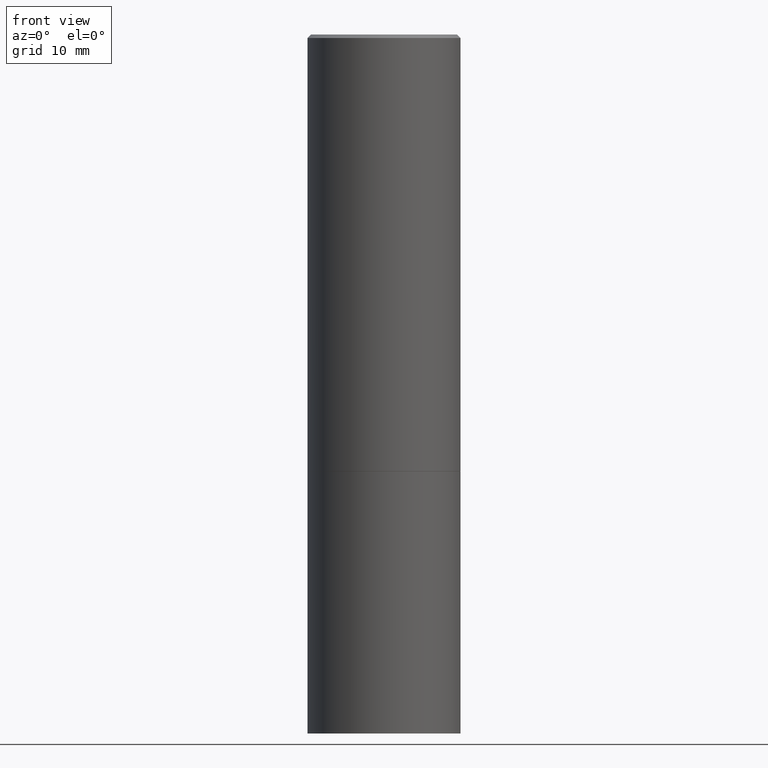
[diagram: clean part render]
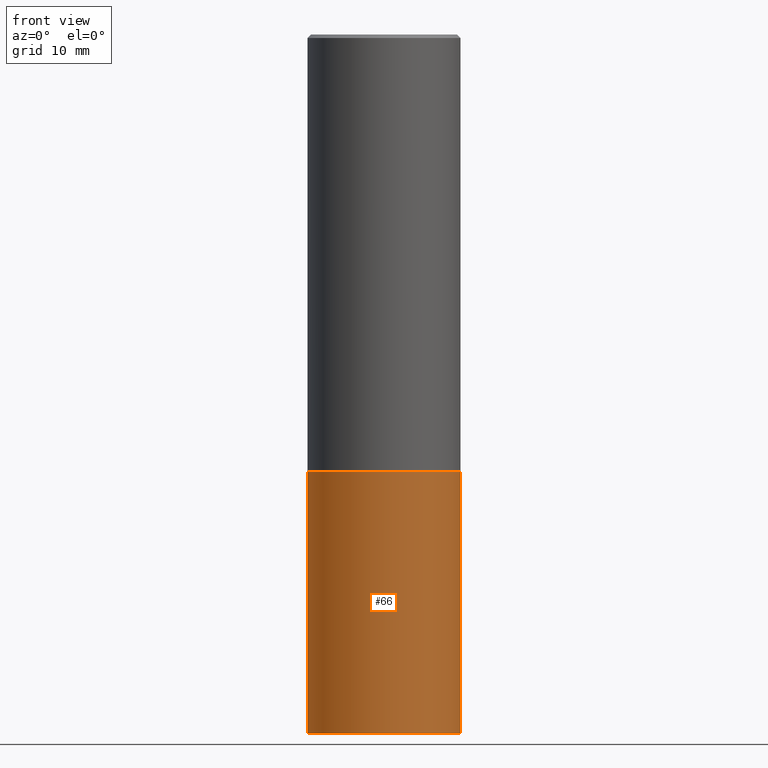
[diagram: same view with one face highlighted and labeled with its STEP entity id]
A machine part, front view. The second image highlights one B-rep face of the part: STEP entity #66.
In plain terms, the highlighted cylindrical surface (partial cylindrical patch) has radius 11.1125 mm, axis along (-0, 0, 1).
Its self-contained STEP definition (entity closure, byte-faithful):
#1 = DIRECTION ( 'NONE',  ( 1.000000000000000000, -6.982962677686267499E-15, 0.000000000000000000 ) ) ;
#13 = EDGE_CURVE ( 'NONE', #311, #138, #90, .T. ) ;
#30 = EDGE_LOOP ( 'NONE', ( #256, #58, #230, #142 ) ) ;
#42 = AXIS2_PLACEMENT_3D ( 'NONE', #64, #137, #1 ) ;
#51 = CARTESIAN_POINT ( 'NONE',  ( 6.113672015462842613E-29, -8.728703347107864943E-15, -2.500000000000000000 ) ) ;
#58 = ORIENTED_EDGE ( 'NONE', *, *, #13, .T. ) ;
#64 = CARTESIAN_POINT ( 'NONE',  ( 9.781875224740546387E-29, -1.396592535537258233E-14, -4.000000000000000000 ) ) ;
#66 = ADVANCED_FACE ( 'NONE', ( #95 ), #214, .T. ) ;
#70 = CARTESIAN_POINT ( 'NONE',  ( 0.4375000000000000000, -3.055046171487741686E-15, 2.133327339410721769E-29 ) ) ;
#73 = CARTESIAN_POINT ( 'NONE',  ( 0.4375000000000000000, -1.702097152686032402E-14, -4.000000000000000000 ) ) ;
#87 = EDGE_CURVE ( 'NONE', #138, #146, #242, .T. ) ;
#90 = CIRCLE ( 'NONE', #42, 0.4375000000000000000 ) ;
#95 = FACE_OUTER_BOUND ( 'NONE', #30, .T. ) ;
#97 = DIRECTION ( 'NONE',  ( -2.445468806185136877E-29, 3.491481338843145188E-15, 1.000000000000000000 ) ) ;
#111 = CIRCLE ( 'NONE', #318, 0.4375000000000000000 ) ;
#121 = VERTEX_POINT ( 'NONE', #212 ) ;
#122 = EDGE_CURVE ( 'NONE', #311, #121, #181, .T. ) ;
#137 = DIRECTION ( 'NONE',  ( -2.445468806185136597E-29, 3.491481338843145583E-15, 1.000000000000000000 ) ) ;
#138 = VERTEX_POINT ( 'NONE', #73 ) ;
#142 = ORIENTED_EDGE ( 'NONE', *, *, #176, .F. ) ;
#146 = VERTEX_POINT ( 'NONE', #186 ) ;
#151 = CARTESIAN_POINT ( 'NONE',  ( -0.4375000000000000000, 3.108624468950438313E-15, -2.152034101986521245E-29 ) ) ;
#161 = CARTESIAN_POINT ( 'NONE',  ( -0.4375000000000000000, -8.238689882289784535E-15, -4.000000000000000000 ) ) ;
#162 = DIRECTION ( 'NONE',  ( -2.445468806185136597E-29, 3.491481338843145583E-15, 1.000000000000000000 ) ) ;
#176 = EDGE_CURVE ( 'NONE', #121, #146, #111, .T. ) ;
#181 = LINE ( 'NONE', #151, #217 ) ;
#186 = CARTESIAN_POINT ( 'NONE',  ( 0.4375000000000000000, -1.178374951859560505E-14, -2.500000000000000000 ) ) ;
#210 = DIRECTION ( 'NONE',  ( -2.445468806185136597E-29, 3.491481338843145583E-15, 1.000000000000000000 ) ) ;
#212 = CARTESIAN_POINT ( 'NONE',  ( -0.4375000000000000000, -8.238689882289784535E-15, -2.500000000000000000 ) ) ;
#214 = CYLINDRICAL_SURFACE ( 'NONE', #310, 0.4375000000000000000 ) ;
#217 = VECTOR ( 'NONE', #271, 39.37007874015748143 ) ;
#230 = ORIENTED_EDGE ( 'NONE', *, *, #87, .T. ) ;
#242 = LINE ( 'NONE', #70, #251 ) ;
#249 = DIRECTION ( 'NONE',  ( 1.000000000000000000, -6.982962677686265133E-15, 0.000000000000000000 ) ) ;
#251 = VECTOR ( 'NONE', #97, 39.37007874015748143 ) ;
#256 = ORIENTED_EDGE ( 'NONE', *, *, #122, .F. ) ;
#271 = DIRECTION ( 'NONE',  ( -2.445468806185136877E-29, 3.491481338843145188E-15, 1.000000000000000000 ) ) ;
#297 = DIRECTION ( 'NONE',  ( 1.000000000000000000, -6.982962677686266711E-15, 4.876176775795935232E-29 ) ) ;
#310 = AXIS2_PLACEMENT_3D ( 'NONE', #348, #210, #297 ) ;
#311 = VERTEX_POINT ( 'NONE', #161 ) ;
#318 = AXIS2_PLACEMENT_3D ( 'NONE', #51, #162, #249 ) ;
#348 = CARTESIAN_POINT ( 'NONE',  ( 0.000000000000000000, 0.000000000000000000, 0.000000000000000000 ) ) ;